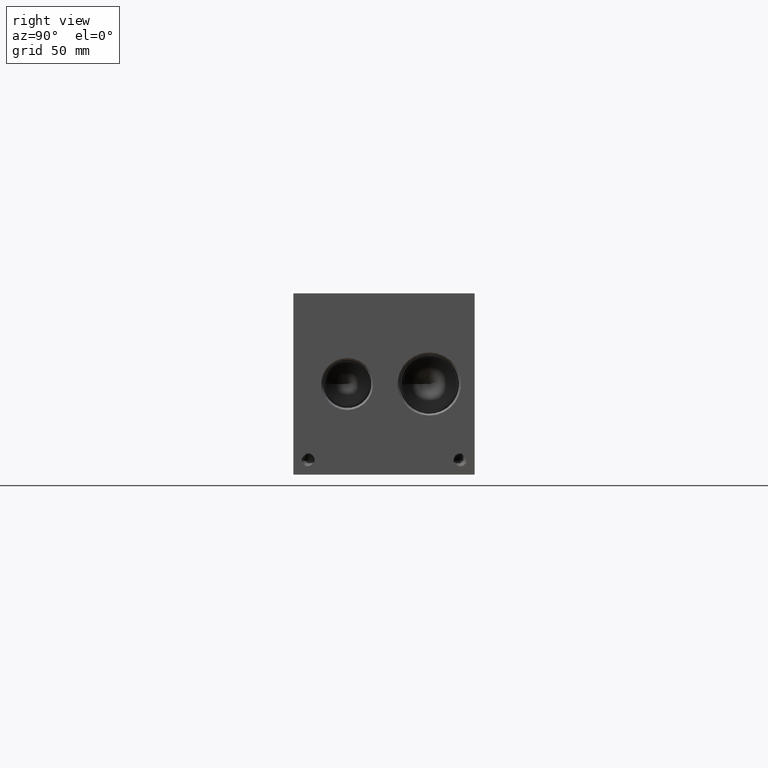
[diagram: clean part render]
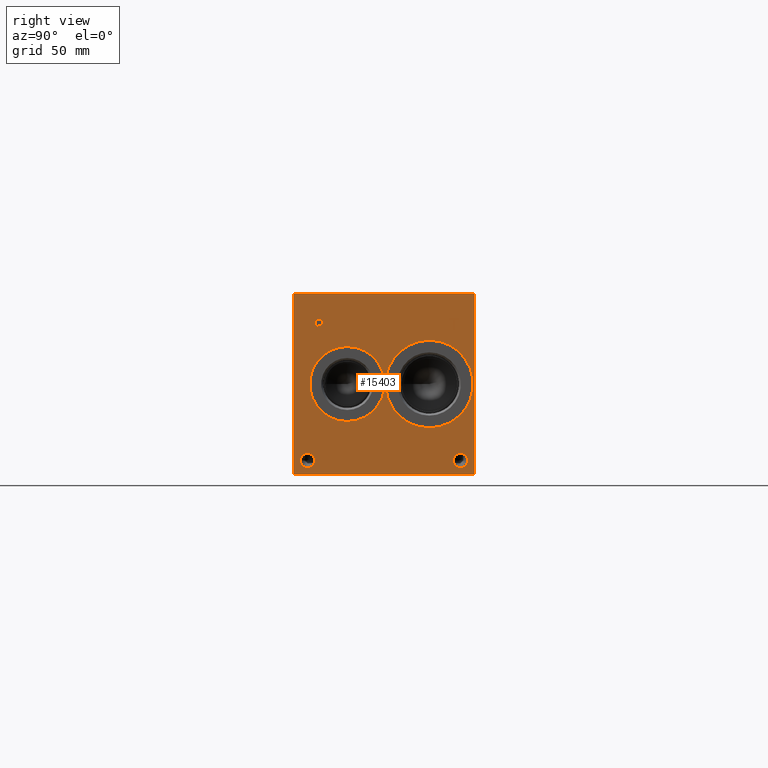
[diagram: same view with one face highlighted and labeled with its STEP entity id]
A machine part, right view. The second image highlights one B-rep face of the part: STEP entity #15403.
In plain terms, the highlighted planar face has unit normal (1, 0, 0).
Its self-contained STEP definition (entity closure, byte-faithful):
#418=CIRCLE('',#16222,24.5618);
#419=CIRCLE('',#16223,24.5618);
#420=CIRCLE('',#16224,21.0185);
#421=CIRCLE('',#16225,21.0185);
#422=CIRCLE('',#16226,3.9624);
#423=CIRCLE('',#16227,3.9624);
#424=CIRCLE('',#16228,3.9624);
#425=CIRCLE('',#16229,3.9624);
#1030=B_SPLINE_CURVE_WITH_KNOTS('',2,(#23033,#23034,#23035,#23036),
 .UNSPECIFIED.,.F.,.F.,(3,1,3),(0.,1.,2.),.UNSPECIFIED.);
#1032=B_SPLINE_CURVE_WITH_KNOTS('',2,(#23054,#23055,#23056,#23057),
 .UNSPECIFIED.,.F.,.F.,(3,1,3),(0.,1.,2.),.UNSPECIFIED.);
#1034=B_SPLINE_CURVE_WITH_KNOTS('',2,(#23103,#23104,#23105,#23106),
 .UNSPECIFIED.,.F.,.F.,(3,1,3),(0.,1.,2.),.UNSPECIFIED.);
#1036=B_SPLINE_CURVE_WITH_KNOTS('',2,(#23121,#23122,#23123,#23124),
 .UNSPECIFIED.,.F.,.F.,(3,1,3),(0.,1.,2.),.UNSPECIFIED.);
#1255=FACE_BOUND('',#2380,.T.);
#1256=FACE_BOUND('',#2381,.T.);
#1257=FACE_BOUND('',#2382,.T.);
#1258=FACE_BOUND('',#2383,.T.);
#1259=FACE_BOUND('',#2384,.T.);
#1260=FACE_BOUND('',#2385,.T.);
#1497=FACE_OUTER_BOUND('',#2379,.T.);
#2379=EDGE_LOOP('',(#10805,#10806,#10807,#10808));
#2380=EDGE_LOOP('',(#10809,#10810));
#2381=EDGE_LOOP('',(#10811,#10812));
#2382=EDGE_LOOP('',(#10813,#10814));
#2383=EDGE_LOOP('',(#10815,#10816));
#2384=EDGE_LOOP('',(#10817,#10818,#10819,#10820,#10821,#10822,#10823,#10824));
#2385=EDGE_LOOP('',(#10825,#10826,#10827,#10828,#10829,#10830,#10831,#10832,
#10833));
#3227=LINE('',#21031,#4648);
#3645=LINE('',#23066,#5066);
#3648=LINE('',#23072,#5069);
#3651=LINE('',#23078,#5072);
#3654=LINE('',#23084,#5075);
#3657=LINE('',#23090,#5078);
#3661=LINE('',#23132,#5082);
#3662=LINE('',#23134,#5083);
#3663=LINE('',#23135,#5084);
#3664=LINE('',#23154,#5085);
#3665=LINE('',#23156,#5086);
#3666=LINE('',#23158,#5087);
#3667=LINE('',#23160,#5088);
#3668=LINE('',#23162,#5089);
#3669=LINE('',#23164,#5090);
#3670=LINE('',#23166,#5091);
#3671=LINE('',#23167,#5092);
#4648=VECTOR('',#17321,10.);
#5066=VECTOR('',#17903,10.);
#5069=VECTOR('',#17908,10.);
#5072=VECTOR('',#17913,10.);
#5075=VECTOR('',#17918,10.);
#5078=VECTOR('',#17923,10.);
#5082=VECTOR('',#17931,10.);
#5083=VECTOR('',#17932,10.);
#5084=VECTOR('',#17933,10.);
#5085=VECTOR('',#17950,10.);
#5086=VECTOR('',#17951,10.);
#5087=VECTOR('',#17952,10.);
#5088=VECTOR('',#17953,10.);
#5089=VECTOR('',#17954,10.);
#5090=VECTOR('',#17955,10.);
#5091=VECTOR('',#17956,10.);
#5092=VECTOR('',#17957,10.);
#6058=VERTEX_POINT('',#21028);
#6059=VERTEX_POINT('',#21030);
#6552=VERTEX_POINT('',#23031);
#6553=VERTEX_POINT('',#23032);
#6556=VERTEX_POINT('',#23053);
#6558=VERTEX_POINT('',#23065);
#6560=VERTEX_POINT('',#23071);
#6562=VERTEX_POINT('',#23077);
#6564=VERTEX_POINT('',#23083);
#6566=VERTEX_POINT('',#23089);
#6568=VERTEX_POINT('',#23102);
#6570=VERTEX_POINT('',#23131);
#6571=VERTEX_POINT('',#23133);
#6572=VERTEX_POINT('',#23136);
#6573=VERTEX_POINT('',#23137);
#6574=VERTEX_POINT('',#23140);
#6575=VERTEX_POINT('',#23141);
#6576=VERTEX_POINT('',#23144);
#6577=VERTEX_POINT('',#23145);
#6578=VERTEX_POINT('',#23148);
#6579=VERTEX_POINT('',#23149);
#6580=VERTEX_POINT('',#23152);
#6581=VERTEX_POINT('',#23153);
#6582=VERTEX_POINT('',#23155);
#6583=VERTEX_POINT('',#23157);
#6584=VERTEX_POINT('',#23159);
#6585=VERTEX_POINT('',#23161);
#6586=VERTEX_POINT('',#23163);
#6587=VERTEX_POINT('',#23165);
#7621=EDGE_CURVE('',#6058,#6059,#3227,.T.);
#8213=EDGE_CURVE('',#6552,#6553,#1030,.T.);
#8217=EDGE_CURVE('',#6556,#6552,#1032,.T.);
#8220=EDGE_CURVE('',#6558,#6556,#3645,.T.);
#8223=EDGE_CURVE('',#6560,#6558,#3648,.T.);
#8226=EDGE_CURVE('',#6562,#6560,#3651,.T.);
#8229=EDGE_CURVE('',#6564,#6562,#3654,.T.);
#8232=EDGE_CURVE('',#6566,#6564,#3657,.T.);
#8235=EDGE_CURVE('',#6568,#6566,#1034,.T.);
#8238=EDGE_CURVE('',#6553,#6568,#1036,.T.);
#8240=EDGE_CURVE('',#6058,#6570,#3661,.T.);
#8241=EDGE_CURVE('',#6570,#6571,#3662,.T.);
#8242=EDGE_CURVE('',#6059,#6571,#3663,.T.);
#8243=EDGE_CURVE('',#6572,#6573,#418,.T.);
#8244=EDGE_CURVE('',#6573,#6572,#419,.T.);
#8245=EDGE_CURVE('',#6574,#6575,#420,.T.);
#8246=EDGE_CURVE('',#6575,#6574,#421,.T.);
#8247=EDGE_CURVE('',#6576,#6577,#422,.T.);
#8248=EDGE_CURVE('',#6577,#6576,#423,.T.);
#8249=EDGE_CURVE('',#6578,#6579,#424,.T.);
#8250=EDGE_CURVE('',#6579,#6578,#425,.T.);
#8251=EDGE_CURVE('',#6580,#6581,#3664,.T.);
#8252=EDGE_CURVE('',#6581,#6582,#3665,.T.);
#8253=EDGE_CURVE('',#6582,#6583,#3666,.T.);
#8254=EDGE_CURVE('',#6583,#6584,#3667,.T.);
#8255=EDGE_CURVE('',#6584,#6585,#3668,.T.);
#8256=EDGE_CURVE('',#6585,#6586,#3669,.T.);
#8257=EDGE_CURVE('',#6586,#6587,#3670,.T.);
#8258=EDGE_CURVE('',#6587,#6580,#3671,.T.);
#10805=ORIENTED_EDGE('',*,*,#8240,.T.);
#10806=ORIENTED_EDGE('',*,*,#8241,.T.);
#10807=ORIENTED_EDGE('',*,*,#8242,.F.);
#10808=ORIENTED_EDGE('',*,*,#7621,.F.);
#10809=ORIENTED_EDGE('',*,*,#8243,.T.);
#10810=ORIENTED_EDGE('',*,*,#8244,.T.);
#10811=ORIENTED_EDGE('',*,*,#8245,.T.);
#10812=ORIENTED_EDGE('',*,*,#8246,.T.);
#10813=ORIENTED_EDGE('',*,*,#8247,.T.);
#10814=ORIENTED_EDGE('',*,*,#8248,.T.);
#10815=ORIENTED_EDGE('',*,*,#8249,.T.);
#10816=ORIENTED_EDGE('',*,*,#8250,.T.);
#10817=ORIENTED_EDGE('',*,*,#8251,.T.);
#10818=ORIENTED_EDGE('',*,*,#8252,.T.);
#10819=ORIENTED_EDGE('',*,*,#8253,.T.);
#10820=ORIENTED_EDGE('',*,*,#8254,.T.);
#10821=ORIENTED_EDGE('',*,*,#8255,.T.);
#10822=ORIENTED_EDGE('',*,*,#8256,.T.);
#10823=ORIENTED_EDGE('',*,*,#8257,.T.);
#10824=ORIENTED_EDGE('',*,*,#8258,.T.);
#10825=ORIENTED_EDGE('',*,*,#8213,.T.);
#10826=ORIENTED_EDGE('',*,*,#8238,.T.);
#10827=ORIENTED_EDGE('',*,*,#8235,.T.);
#10828=ORIENTED_EDGE('',*,*,#8232,.T.);
#10829=ORIENTED_EDGE('',*,*,#8229,.T.);
#10830=ORIENTED_EDGE('',*,*,#8226,.T.);
#10831=ORIENTED_EDGE('',*,*,#8223,.T.);
#10832=ORIENTED_EDGE('',*,*,#8220,.T.);
#10833=ORIENTED_EDGE('',*,*,#8217,.T.);
#14359=PLANE('',#16221);
#15403=ADVANCED_FACE('',(#1497,#1255,#1256,#1257,#1258,#1259,#1260),#14359,
 .T.);
#16221=AXIS2_PLACEMENT_3D('',#23130,#17929,#17930);
#16222=AXIS2_PLACEMENT_3D('',#23138,#17934,#17935);
#16223=AXIS2_PLACEMENT_3D('',#23139,#17936,#17937);
#16224=AXIS2_PLACEMENT_3D('',#23142,#17938,#17939);
#16225=AXIS2_PLACEMENT_3D('',#23143,#17940,#17941);
#16226=AXIS2_PLACEMENT_3D('',#23146,#17942,#17943);
#16227=AXIS2_PLACEMENT_3D('',#23147,#17944,#17945);
#16228=AXIS2_PLACEMENT_3D('',#23150,#17946,#17947);
#16229=AXIS2_PLACEMENT_3D('',#23151,#17948,#17949);
#17321=DIRECTION('',(0.,0.,1.));
#17903=DIRECTION('',(0.,1.,0.));
#17908=DIRECTION('',(0.,0.,1.));
#17913=DIRECTION('',(0.,-1.,0.));
#17918=DIRECTION('',(0.,0.,-1.));
#17923=DIRECTION('',(0.,-1.,0.));
#17929=DIRECTION('center_axis',(1.,0.,0.));
#17930=DIRECTION('ref_axis',(0.,1.,0.));
#17931=DIRECTION('',(0.,1.,0.));
#17932=DIRECTION('',(0.,0.,1.));
#17933=DIRECTION('',(0.,1.,0.));
#17934=DIRECTION('center_axis',(-1.,0.,0.));
#17935=DIRECTION('ref_axis',(0.,0.,-1.));
#17936=DIRECTION('center_axis',(-1.,0.,0.));
#17937=DIRECTION('ref_axis',(0.,0.,-1.));
#17938=DIRECTION('center_axis',(-1.,0.,0.));
#17939=DIRECTION('ref_axis',(0.,0.,-1.));
#17940=DIRECTION('center_axis',(-1.,0.,0.));
#17941=DIRECTION('ref_axis',(0.,0.,-1.));
#17942=DIRECTION('center_axis',(-1.,0.,0.));
#17943=DIRECTION('ref_axis',(0.,1.,0.));
#17944=DIRECTION('center_axis',(-1.,0.,0.));
#17945=DIRECTION('ref_axis',(0.,1.,0.));
#17946=DIRECTION('center_axis',(-1.,0.,0.));
#17947=DIRECTION('ref_axis',(0.,1.,0.));
#17948=DIRECTION('center_axis',(-1.,0.,0.));
#17949=DIRECTION('ref_axis',(0.,1.,0.));
#17950=DIRECTION('',(0.,-1.,0.));
#17951=DIRECTION('',(0.,0.,1.));
#17952=DIRECTION('',(0.,-1.,0.));
#17953=DIRECTION('',(0.,0.,1.));
#17954=DIRECTION('',(0.,1.,0.));
#17955=DIRECTION('',(0.,0.,-1.));
#17956=DIRECTION('',(0.,-1.,0.));
#17957=DIRECTION('',(0.,0.,-1.));
#21028=CARTESIAN_POINT('',(384.175,0.,0.));
#21030=CARTESIAN_POINT('',(384.175,0.,101.6));
#21031=CARTESIAN_POINT('',(384.175,0.,0.));
#23031=CARTESIAN_POINT('',(384.175,15.8068172023594,86.9162681439707));
#23032=CARTESIAN_POINT('',(384.175,16.563259654532,85.398237372604));
#23033=CARTESIAN_POINT('Ctrl Pts',(384.175,15.8068172023594,86.9162681439707));
#23034=CARTESIAN_POINT('Ctrl Pts',(384.175,16.1618820268486,86.6744123939564));
#23035=CARTESIAN_POINT('Ctrl Pts',(384.175,16.563259654532,85.9282616758269));
#23036=CARTESIAN_POINT('Ctrl Pts',(384.175,16.563259654532,85.398237372604));
#23053=CARTESIAN_POINT('',(384.175,14.1447021543883,87.3124999046326));
#23054=CARTESIAN_POINT('Ctrl Pts',(384.175,14.1447021543883,87.3124999046326));
#23055=CARTESIAN_POINT('Ctrl Pts',(384.175,14.7107475267624,87.3124999046326));
#23056=CARTESIAN_POINT('Ctrl Pts',(384.175,15.503211048086,87.1272486918556));
#23057=CARTESIAN_POINT('Ctrl Pts',(384.175,15.8068172023594,86.9162681439707));
#23065=CARTESIAN_POINT('',(384.175,12.5494833776978,87.3124999046326));
#23066=CARTESIAN_POINT('',(384.175,6.27474168884889,87.3124999046326));
#23071=CARTESIAN_POINT('',(384.175,12.5494833776978,80.9625));
#23072=CARTESIAN_POINT('',(384.175,12.5494833776978,40.48125));
#23077=CARTESIAN_POINT('',(384.175,13.3934055692373,80.9625));
#23078=CARTESIAN_POINT('',(384.175,6.69670278461864,80.9625));
#23083=CARTESIAN_POINT('',(384.175,13.3934055692373,83.3295988299279));
#23084=CARTESIAN_POINT('',(384.175,13.3934055692373,41.6647994149639));
#23089=CARTESIAN_POINT('',(384.175,14.1086810852372,83.3295988299279));
#23090=CARTESIAN_POINT('',(384.175,7.05434054261861,83.3295988299279));
#23102=CARTESIAN_POINT('',(384.175,16.0075060162011,83.9882698086904));
#23103=CARTESIAN_POINT('Ctrl Pts',(384.175,16.0075060162011,83.9882698086904));
#23104=CARTESIAN_POINT('Ctrl Pts',(384.175,15.6781705268198,83.6640801863307));
#23105=CARTESIAN_POINT('Ctrl Pts',(384.175,14.7879355320861,83.3295988299279));
#23106=CARTESIAN_POINT('Ctrl Pts',(384.175,14.1086810852372,83.3295988299279));
#23121=CARTESIAN_POINT('Ctrl Pts',(384.175,16.563259654532,85.398237372604));
#23122=CARTESIAN_POINT('Ctrl Pts',(384.175,16.563259654532,84.9865680108774));
#23123=CARTESIAN_POINT('Ctrl Pts',(384.175,16.2699452343018,84.2455631597695));
#23124=CARTESIAN_POINT('Ctrl Pts',(384.175,16.0075060162011,83.9882698086904));
#23130=CARTESIAN_POINT('Origin',(384.175,0.,0.));
#23131=CARTESIAN_POINT('',(384.175,101.6,0.));
#23132=CARTESIAN_POINT('',(384.175,0.,0.));
#23133=CARTESIAN_POINT('',(384.175,101.6,101.6));
#23134=CARTESIAN_POINT('',(384.175,101.6,0.));
#23135=CARTESIAN_POINT('',(384.175,0.,101.6));
#23136=CARTESIAN_POINT('',(384.175,76.2,26.2382));
#23137=CARTESIAN_POINT('',(384.175,76.2,75.3618));
#23138=CARTESIAN_POINT('Origin',(384.175,76.2,50.8));
#23139=CARTESIAN_POINT('Origin',(384.175,76.2,50.8));
#23140=CARTESIAN_POINT('',(384.175,30.1752,29.7815));
#23141=CARTESIAN_POINT('',(384.175,30.1752,71.8185));
#23142=CARTESIAN_POINT('Origin',(384.175,30.1752,50.8));
#23143=CARTESIAN_POINT('Origin',(384.175,30.1752,50.8));
#23144=CARTESIAN_POINT('',(384.175,11.8872,7.9248));
#23145=CARTESIAN_POINT('',(384.175,3.9624,7.9248));
#23146=CARTESIAN_POINT('Origin',(384.175,7.9248,7.9248));
#23147=CARTESIAN_POINT('Origin',(384.175,7.9248,7.9248));
#23148=CARTESIAN_POINT('',(384.175,97.6376,7.9248));
#23149=CARTESIAN_POINT('',(384.175,89.7128,7.9248));
#23150=CARTESIAN_POINT('Origin',(384.175,93.6752,7.9248));
#23151=CARTESIAN_POINT('Origin',(384.175,93.6752,7.9248));
#23152=CARTESIAN_POINT('',(384.175,90.281665271453,80.9625));
#23153=CARTESIAN_POINT('',(384.175,89.4377430799135,80.9625));
#23154=CARTESIAN_POINT('',(384.175,45.1408326357265,80.9625));
#23155=CARTESIAN_POINT('',(384.175,89.4377430799135,86.5612033194816));
#23156=CARTESIAN_POINT('',(384.175,89.4377430799135,40.48125));
#23157=CARTESIAN_POINT('',(384.175,87.3073541329784,86.5612033194816));
#23158=CARTESIAN_POINT('',(384.175,44.7188715399568,86.5612033194816));
#23159=CARTESIAN_POINT('',(384.175,87.3073541329784,87.3124999046326));
#23160=CARTESIAN_POINT('',(384.175,87.3073541329784,43.2806016597408));
#23161=CARTESIAN_POINT('',(384.175,92.4120542183881,87.3124999046326));
#23162=CARTESIAN_POINT('',(384.175,43.6536770664892,87.3124999046326));
#23163=CARTESIAN_POINT('',(384.175,92.4120542183881,86.5612033194816));
#23164=CARTESIAN_POINT('',(384.175,92.4120542183881,43.6562499523163));
#23165=CARTESIAN_POINT('',(384.175,90.281665271453,86.5612033194816));
#23166=CARTESIAN_POINT('',(384.175,46.206027109194,86.5612033194816));
#23167=CARTESIAN_POINT('',(384.175,90.281665271453,43.2806016597408));